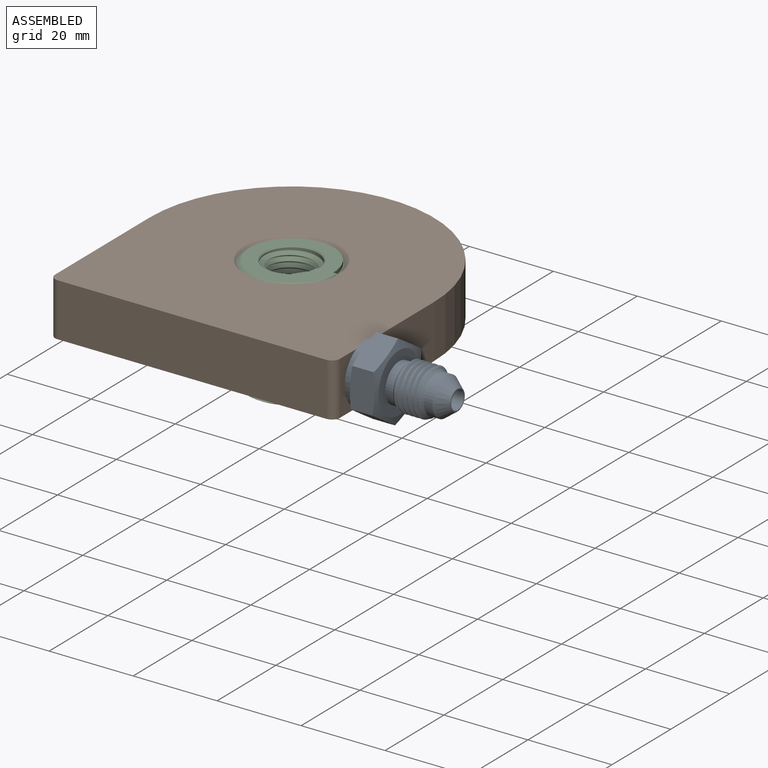
[diagram: assembled view]
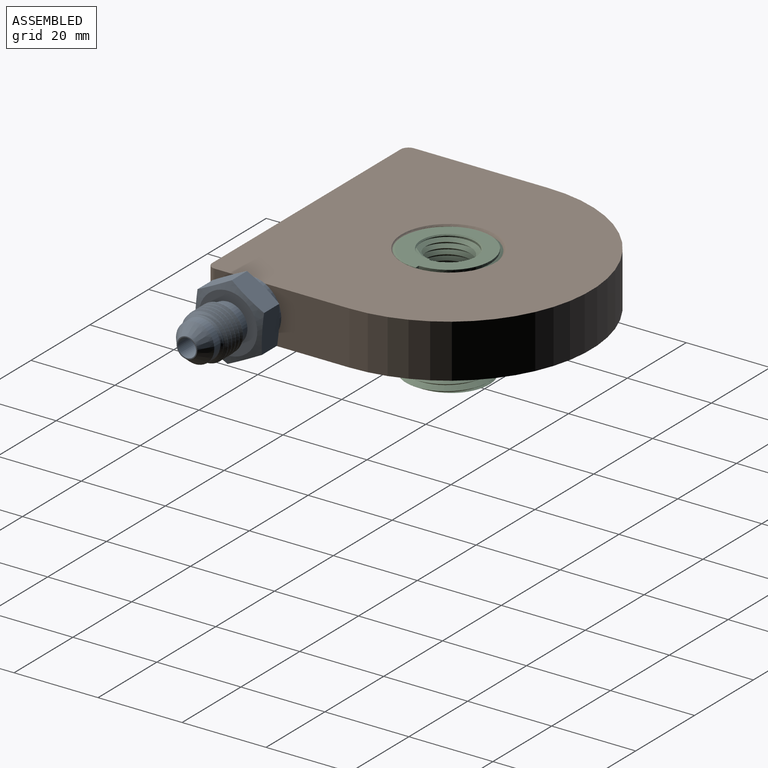
[diagram: assembled view, second angle]
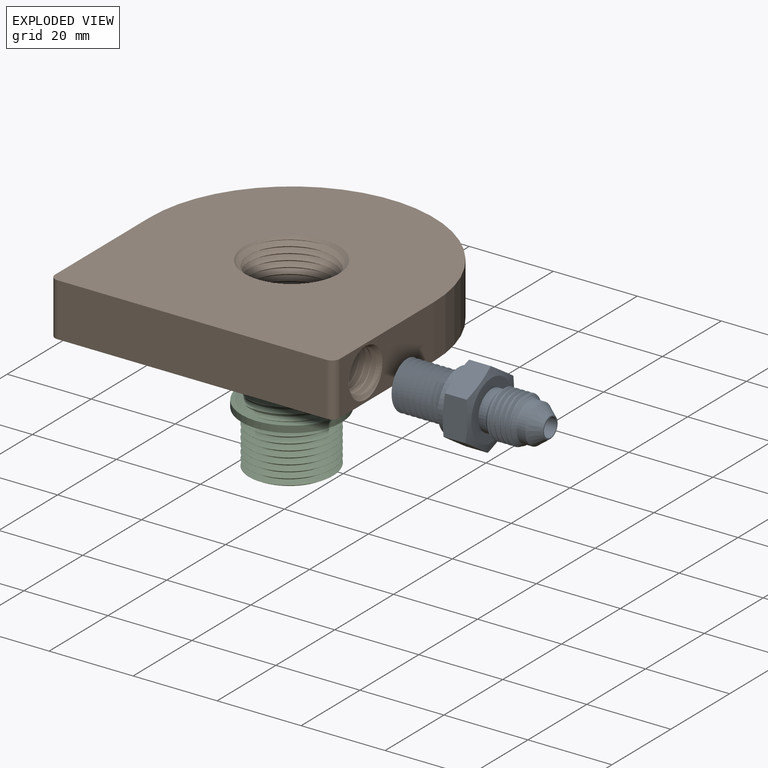
[diagram: exploded view]
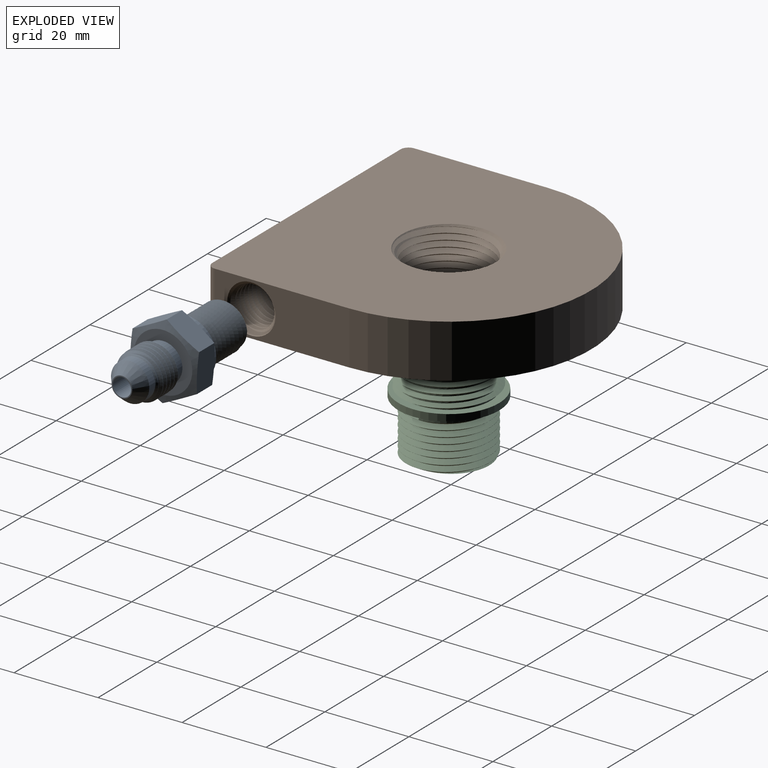
[diagram: exploded view, second angle]
ASSEMBLY  parts=3 mates=4
PART A: 34 faces, bbox 19.4x36.4x19.4 mm
  f0: bspline ~12.91x12.7mm, area 365.2mm2, adj f1,f31,f32
  f1: bspline ~13.41x12.91mm, area 383.2mm2, adj f0,f31,f32,f33
  f2: cylinder r=4.32mm len=8.64mm, axis (0,-1,0), area 19.1mm2, adj f29,f32,f33
  f3: cone r=9.17mm half-angle=75deg, axis (0,-1,0), area 61mm2, adj f20,f21,f22,f23,f24,f25,f27
  f4: cylinder r=2.18mm len=16.8mm, axis (0,1,0), area 230.6mm2, adj f15,f26
  f5: plane 13.94x13.94mm, normal (0,-1,0), area 85.6mm2, adj f14,f19
  f6: torus R=2.39mm, axis (0,-1,0), area 1.8mm2, adj f7,f15
  f7: cone r=4.56mm half-angle=37deg, axis (0,1,0), area 76.2mm2, adj f6,f8
  f8: cylinder r=4.56mm len=9.12mm, axis (0,-1,0), area 57.3mm2, adj f7,f9
  f9: torus R=4.81mm, axis (0,-1,0), area 5.7mm2, adj f8,f10
  f10: cone r=5.56mm half-angle=45deg, axis (0,1,0), area 23.4mm2, adj f9,f11,f16,f17,f18
  f11: cylinder r=5.56mm len=11.11mm, axis (0,-1,0), area 22.8mm2, adj f10,f12,f17,f18
  f12: cone r=4.7mm half-angle=45deg, axis (0,-1,0), area 20.8mm2, adj f11,f13,f16,f17,f18
  f13: torus R=4.88mm, axis (0,-1,0), area 5.8mm2, adj f12,f14
  f14: cylinder r=4.62mm len=9.25mm, axis (0,-1,0), area 52.3mm2, adj f5,f13
  f15: plane 4.78x4.78mm, normal (0,-1,0), area 2.9mm2, adj f4,f6
  f16: bspline ~9.88x9.88mm, area 74.3mm2, adj f10,f12,f17,f18
  f17: bspline ~11.24x11.24mm, area 108.9mm2, adj f10,f11,f12,f16
  f18: bspline ~11.24x11.24mm, area 108.4mm2, adj f10,f11,f12,f16
  f19: cone r=6.97mm half-angle=75deg, axis (0,1,0), area 67.8mm2, adj f5,f20,f21,f22,f23,f24,f25
  f20: plane 9.17x5.83mm, normal (1,0,0), area 51.4mm2, adj f3,f19,f21,f25
  f21: plane 7.94x5.83mm, normal (0.5,0,-0.87), area 51.4mm2, adj f3,f19,f20,f22
  f22: plane 7.94x5.83mm, normal (-0.5,0,-0.87), area 51.4mm2, adj f3,f19,f21,f23
  f23: plane 9.17x5.83mm, normal (-1,0,0), area 51.4mm2, adj f3,f19,f22,f24
  f24: plane 7.94x5.83mm, normal (-0.5,0,0.87), area 51.4mm2, adj f3,f19,f23,f25
  f25: plane 7.94x5.83mm, normal (0.5,0,0.87), area 51.4mm2, adj f3,f19,f20,f24
  f26: cone r=3.81mm half-angle=59deg, axis (0,1,0), area 0.3mm2, adj f4,f28
  f27: cylinder r=7.12mm len=14.25mm, axis (0,-1,0), area 72.8mm2, adj f3,f29
  f28: cylinder r=2.2mm len=5.09mm, axis (0,-1,0), area 70.5mm2, adj f26,f30
  f29: plane 14.25x14.25mm, normal (0,1,0), area 100.8mm2, adj f2,f27
  f30: cylinder r=2.19mm len=12.7mm, axis (0,-1,0), area 174.9mm2, adj f28,f31
  f31: plane 11.04x11.03mm, normal (0,1,0), area 63.1mm2, adj f0,f1,f30
  f32: plane 1.44x1.27mm, normal (0,0,1), area 0.9mm2, adj f0,f1,f2,f33
  f33: bspline ~8.72x8.72mm, area 1.5mm2, adj f1,f2,f32
PART B: 29 faces, bbox 68.5x67.8x14.3 mm
  f0: torus R=23.28mm, axis (0,0,1), area 2065.9mm2, adj f2,f3,f7,f20,f21,f22
  f1: plane 9.54x9.22mm, normal (1,0,0), area 8.3mm2, adj f2,f19,f21,f22,f24,f25
  f2: cylinder r=4.32mm len=21.21mm, axis (-1,0,0), area 378.6mm2, adj f0,f1,f3
  f3: cylinder r=27.56mm len=55.12mm, axis (0,0,-1), area 940.8mm2, adj f0,f2,f6
  f4: cylinder r=33.91mm len=67.82mm, axis (0,0,-1), area 1352.9mm2, adj f5,f6,f16,f18
  f5: plane 67.82x67.82mm, normal (0,0,1), area 3707mm2, adj f4,f11,f13,f15,f16,f17,f18,f27
  f6: plane 67.82x67.82mm, normal (0,0,-1), area 1718.2mm2, adj f3,f4,f16,f17,f18,f27,f28
  f7: cylinder r=19.05mm len=38.1mm, axis (0,0,-1), area 659.1mm2, adj f0,f8
  f8: plane 38.1x38.1mm, normal (0,0,-1), area 742.9mm2, adj f7,f10,f11,f12,f14
  f9: cylinder r=10mm len=20mm, axis (0,0,-1), area 40.7mm2, adj f11,f12,f14,f15
  f10: plane 0.06x0.04mm, normal (0.21,-0.98,0), area 0mm2, adj f8,f11,f14
  f11: bspline ~26.03x22.54mm, area 755.6mm2, adj f5,f8,f9,f10,f12,f14,f15
  f12: bspline ~26.03x22.54mm, area 747.6mm2, adj f8,f9,f11,f13,f14,f15
  f13: plane 0.06x0.03mm, normal (0,-1,0), area 0mm2, adj f5,f12,f15
  f14: cone r=10mm half-angle=45deg, axis (0,0,-1), area 59.9mm2, adj f8,f9,f10,f11,f12
  f15: cone r=10mm half-angle=45deg, axis (0,0,1), area 60.1mm2, adj f5,f9,f11,f12,f13
  f16: plane 32x12.7mm, normal (-1,0,0), area 406.5mm2, adj f4,f5,f6,f27
  f17: plane 64.01x12.7mm, normal (0,-1,0), area 812.9mm2, adj f5,f6,f27,f28
  f18: plane 32.01x12.7mm, normal (1,0,0), area 302.5mm2, adj f4,f5,f6,f20,f23,f26,f28
  f19: cylinder r=4.76mm len=11.71mm, axis (1,0,0), area 33.8mm2, adj f1,f20,f21,f22,f26
  f20: bspline ~13.41x13.35mm, area 328.3mm2, adj f0,f18,f19,f21,f22,f26
  f21: plane 1.36x1.24mm, normal (0,0,1), area 0.8mm2, adj f0,f1,f19,f20,f22,f24,f25
  f22: bspline ~13.41x13.35mm, area 349.5mm2, adj f0,f1,f19,f20,f21,f23,f25,f26
  f23: plane 0.06x0.03mm, normal (0,0,-1), area 0mm2, adj f18,f22,f26
  f24: cylinder r=4.45mm len=8.89mm, axis (-1,0,0), area 5.9mm2, adj f1,f21,f25
  f25: bspline ~9.11x5.86mm, area 1.9mm2, adj f1,f21,f22,f24
  f26: cone r=4.76mm half-angle=45deg, axis (1,0,0), area 27.2mm2, adj f18,f19,f20,f22,f23
  f27: cylinder r=1.91mm len=12.7mm, axis (0,0,1), area 38mm2, adj f5,f6,f16,f17
  f28: cylinder r=1.91mm len=12.7mm, axis (0,0,1), area 38mm2, adj f5,f6,f17,f18
PART C: 19 faces, bbox 25.1x26.6x29.5 mm
  f0: plane 1.02x0.62mm, normal (0,1,0), area 0.3mm2, adj f1,f6,f7,f8
  f1: bspline ~25.44x22.03mm, area 643.5mm2, adj f0,f5,f6,f7,f8,f9
  f2: bspline ~27.92x15.27mm, area 864.3mm2, adj f3,f8,f12,f16,f17,f18
  f3: bspline ~27.1x14.66mm, area 838.9mm2, adj f2,f12,f16,f17
  f4: cylinder r=10mm len=20mm, axis (0,0,-1), area 142mm2, adj f11,f12,f13,f14,f15
  f5: plane 0.93x0.55mm, normal (-0.25,0.97,0), area 0.3mm2, adj f1,f7,f9
  f6: bspline ~25.44x22.03mm, area 637.7mm2, adj f0,f1,f7,f9
  f7: cylinder r=10mm len=20mm, axis (0,0,-1), area 129mm2, adj f0,f1,f5,f6,f8,f9
  f8: plane 21.07x20.43mm, normal (0,0,1), area 189.1mm2, adj f0,f1,f2,f7,f17,f18
  f9: plane 24.67x24.67mm, normal (0,0,1), area 123.8mm2, adj f1,f5,f6,f7,f10
  f10: cylinder r=12mm len=24mm, axis (0,0,1), area 119.7mm2, adj f9,f11
  f11: plane 24x24mm, normal (0,0,-1), area 138.2mm2, adj f4,f10
  f12: plane 19.93x19.93mm, normal (0,0,-1), area 167mm2, adj f2,f3,f4,f13,f14,f16
  f13: bspline ~23.09x20mm, area 712.6mm2, adj f4,f12,f14,f15
  f14: bspline ~23.09x20mm, area 669.4mm2, adj f4,f12,f13,f15
  f15: plane 1.47x1.27mm, normal (0,-1,0), area 0.9mm2, adj f4,f13,f14
  f16: cylinder r=6.35mm len=26.73mm, axis (0,0,-1), area 185.6mm2, adj f2,f3,f12,f17,f18
  f17: plane 1.27x1.17mm, normal (0,1,0), area 0.6mm2, adj f2,f3,f8,f16,f18
  f18: cone r=6.35mm half-angle=45deg, axis (0,0,1), area 12.4mm2, adj f2,f8,f16,f17
PLACE A rot(axis=(0.71,-0.71,0.02),177.8deg) t=(70.04,10.62,-6.35)mm
PLACE B t=(32,33.91,-6.35)mm
PLACE C rot(axis=(0,0,-1),1deg) t=(32,33.91,-12.7)mm
MATE planar B.f18 <-> A.f27  axis (1,0,0) through (65.91,20.41,-6.35)mm
MATE cylindrical B.f2 <-> A.f27  axis (1,0,0) through (65.91,10.62,-6.35)mm
MATE planar C.f9 <-> B.f0  axis (0,0,1) through (21.8,29.77,-12.7)mm
MATE cylindrical C.f10 <-> B.f7  axis (0,0,-1) through (32,33.91,-14.29)mm
